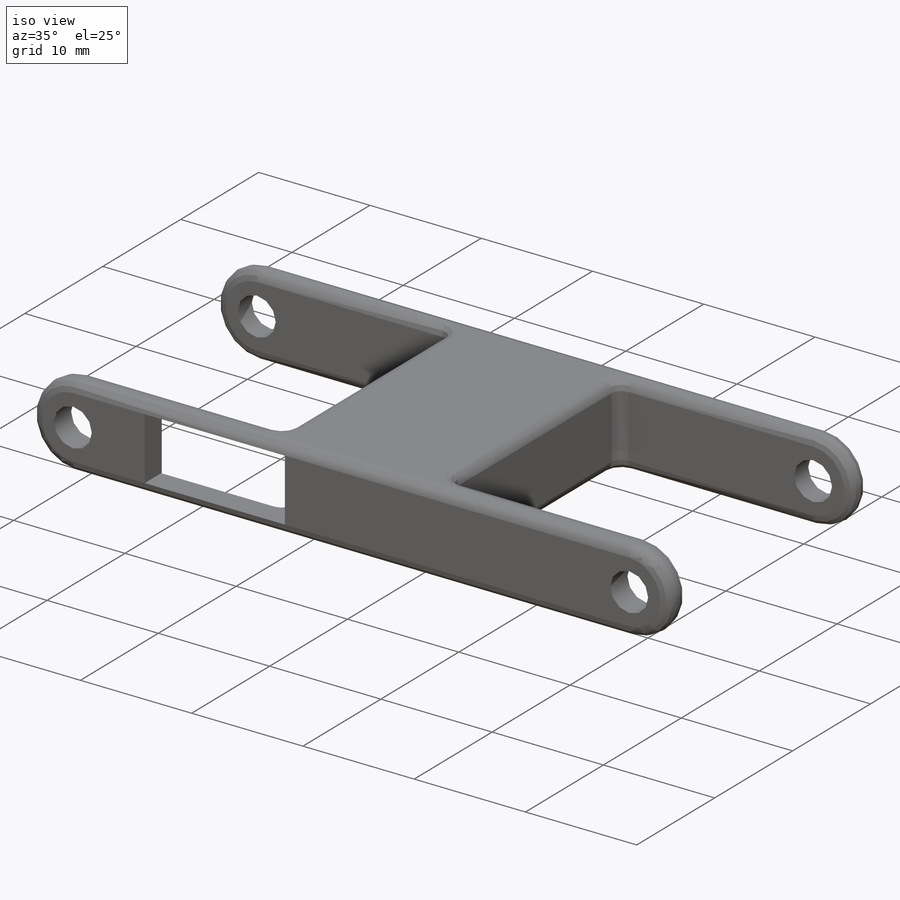
[diagram: iso view]
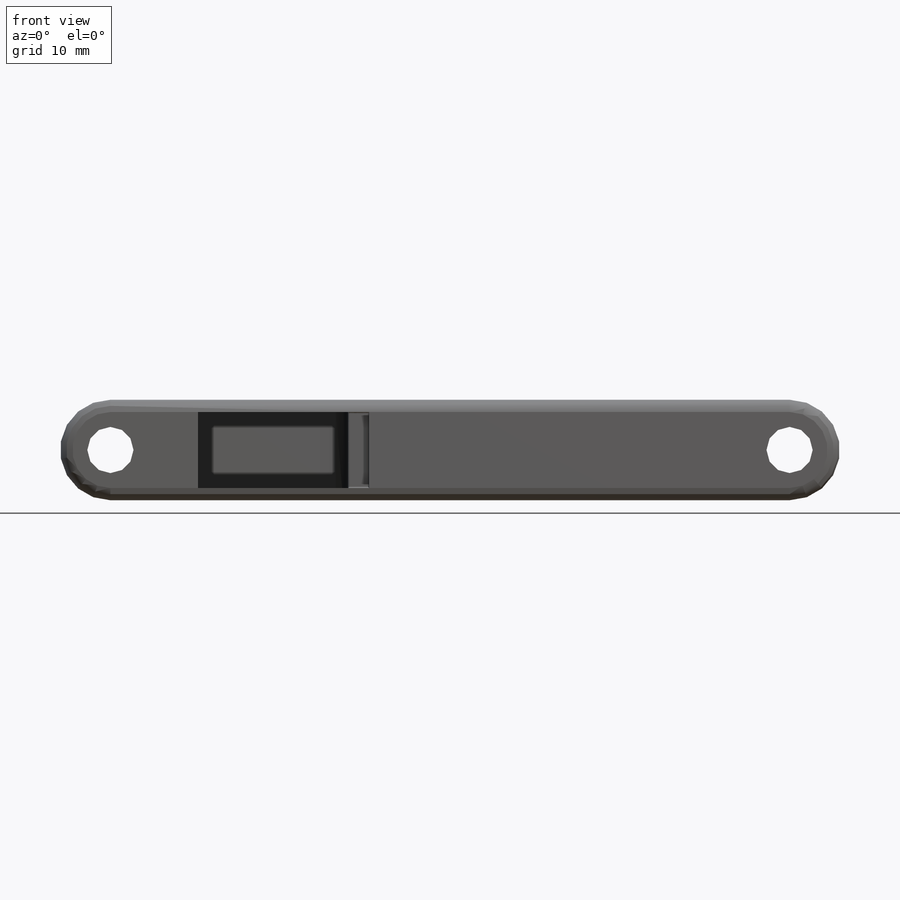
[diagram: front view]
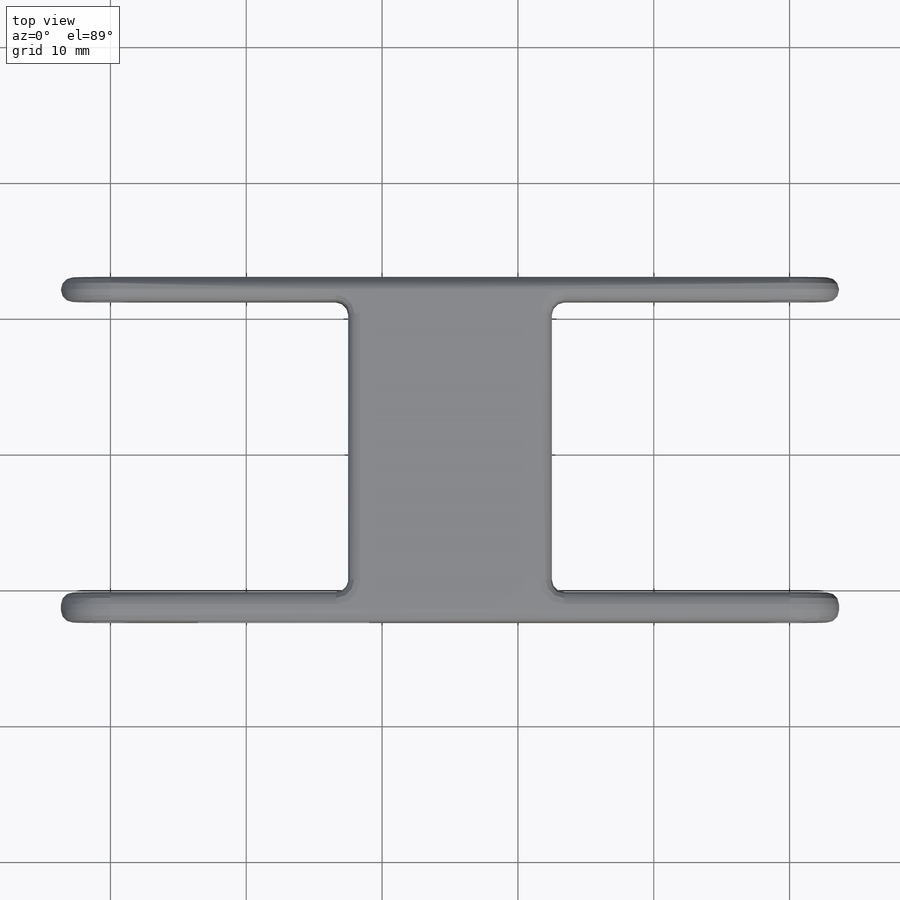
[diagram: top view]
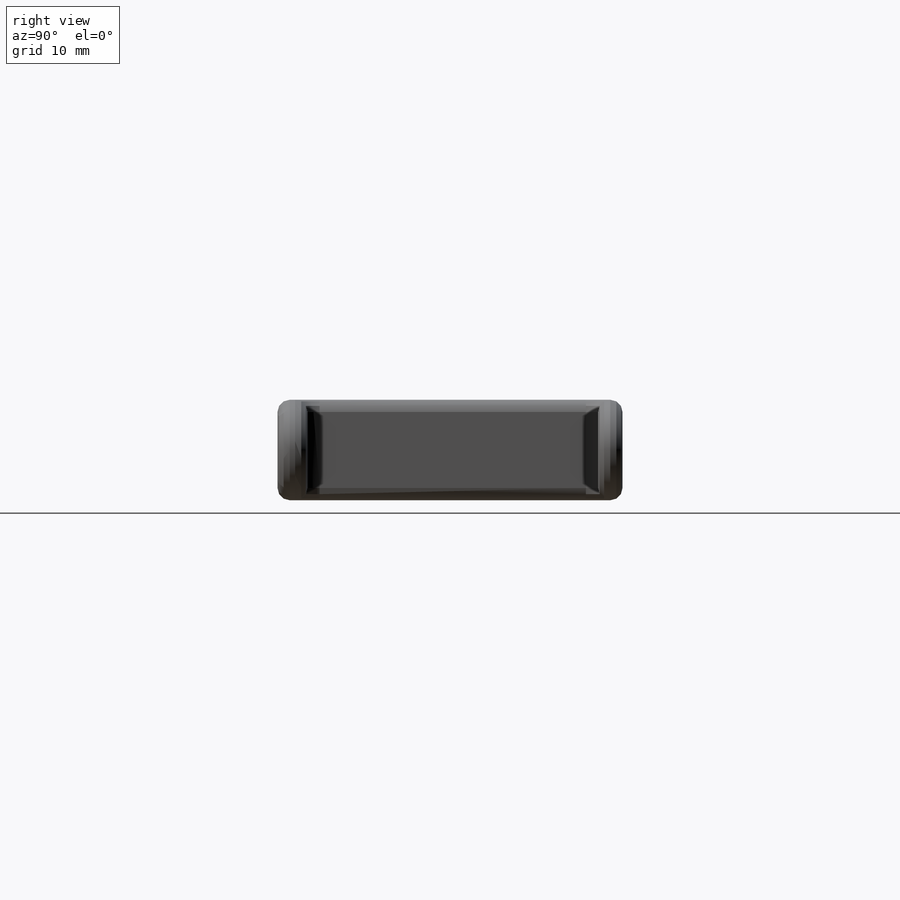
[diagram: right view]
SOLIDWORKS PART (.sldprt)
format: sldprt  version: not decoded by parser v0  size: 424,448 bytes
history: native  units: mm
features: sketch x5, fillet x5, extrude x3, cut_extrude x2, material x1, mirror x1 (+12 scaffold rows collapsed)
feature tree (29):
  scaffold x12  (default folders/planes/origin — collapsed)
  material  "Material <not specified>"
  sketch  "Sketch1"  dims[D2=2.0mm D1=0.2mm]
  extrude  "Boss-Extrude1"  Depth=0.2mm
  sketch  "Sketch3"  dims[D1=0.0mm]
  extrude  "Boss-Extrude2"  Depth=0.2mm
  mirror  "Mirror1"
  sketch  "Sketch4"  dims[D1=15.0mm]
  extrude  "Boss-Extrude3"  [1 undecoded]
  fillet  "Fillet2"  Radius=0.9mm
  sketch  "Sketch5"  dims[D1=0.3mm]
  cut_extrude  "Cut-Extrude1"  Depth=0.5mm
  sketch  "Sketch6"  dims[c1.D2=~3.300595mm c2.D2=45.0deg c2.D1=1.0mm]
  cut_extrude  "Cut-Extrude2"  Depth=0.5mm
  fillet  "Fillet3"  Radius=0.1mm
  fillet  "Fillet5"  Radius=0.1mm
  fillet  "Fillet6"  Radius=0.1mm
  fillet  "Fillet1"  Radius=0.9mm
decode coverage: 14 of 16 modeling features carry decoded parameters
note: ~ marks probable driven/reference dimensions
note: 1 parameter value undecoded
note: suppression state not decoded; provenance and decode notes live in map.json
